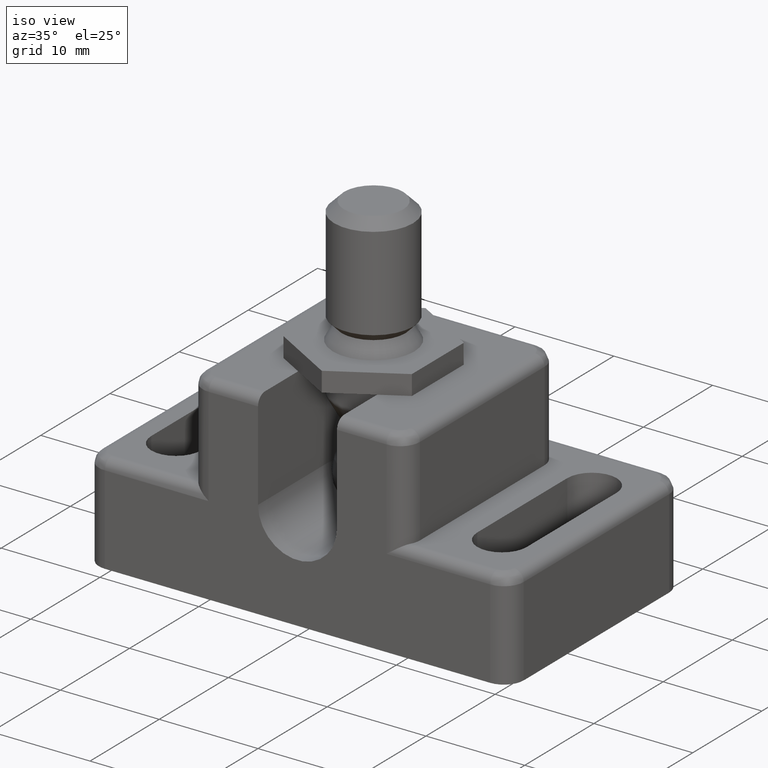
[diagram: clean part render]
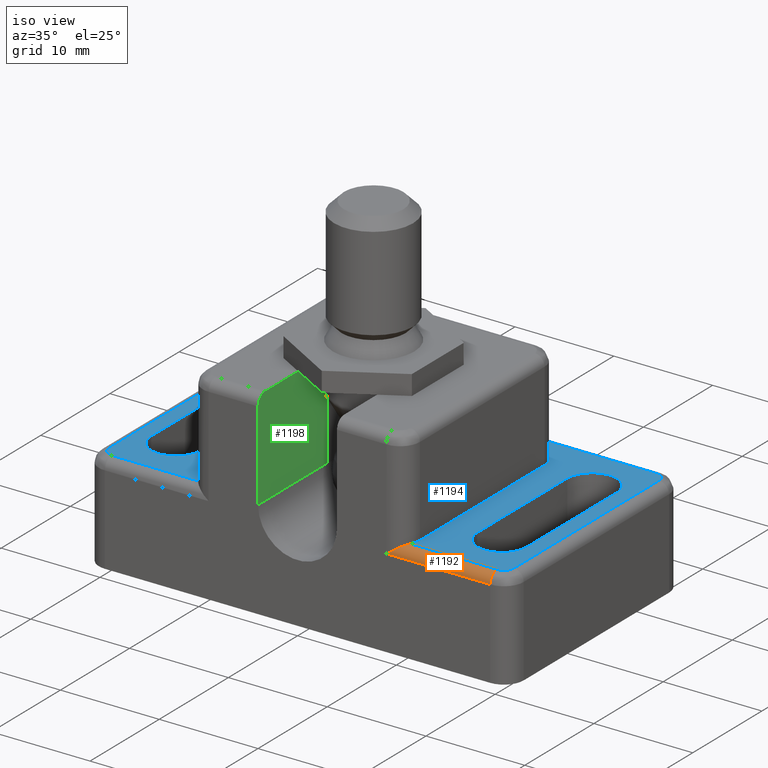
[diagram: same view with three faces highlighted in distinct colors, each labeled with its STEP entity id]
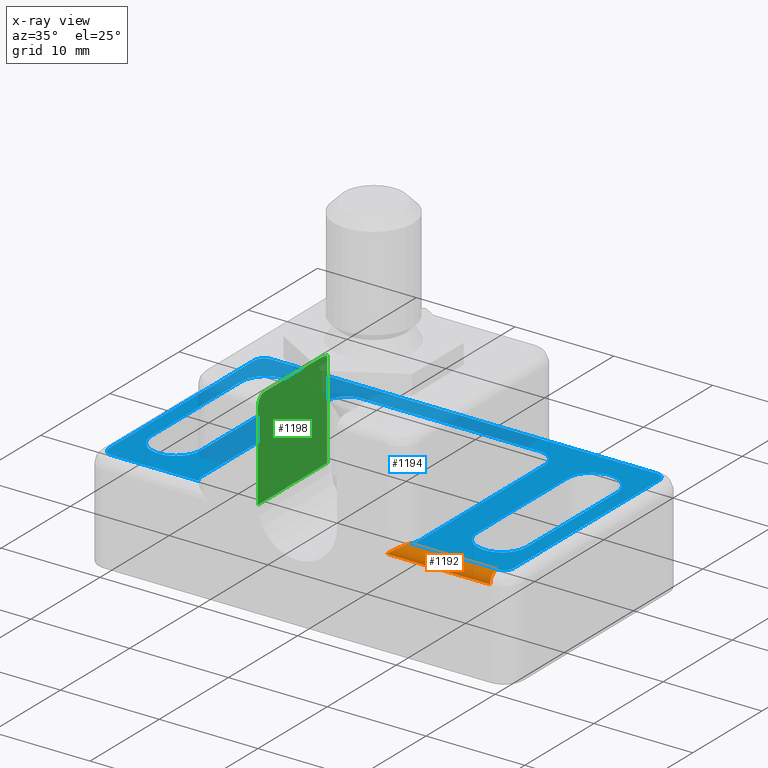
[diagram: x-ray of the same camera — body ghosted, the three highlighted faces saturated]
A machine part, iso view with three faces highlighted in distinct colors.
The next image is the same camera in x-ray (body ghosted, the three faces saturated) — at least one of them is partly hidden behind the body in this view.
Their STEP definitions:

[orange] entity #1192 — the highlighted cylindrical surface (edge-blend (fillet) strip) has radius 1 mm, axis along (-1, 0, 0).
#61=B_SPLINE_CURVE_WITH_KNOTS('',3,(#1919,#1920,#1921,#1922,#1923,#1924,
#1925,#1926,#1927,#1928),.UNSPECIFIED.,.F.,.F.,(4,2,2,2,4),(-0.223738975897401,
-0.178398302759079,-0.133057629620758,-0.066528814810379,-2.77555756156289E-17),
 .UNSPECIFIED.);
#67=CYLINDRICAL_SURFACE('',#1303,1.);
#103=LINE('',#1930,#200);
#104=LINE('',#1933,#201);
#200=VECTOR('',#1480,1.);
#201=VECTOR('',#1483,1.);
#302=FACE_OUTER_BOUND('',#371,.T.);
#371=EDGE_LOOP('',(#852,#853,#854,#855));
#453=CIRCLE('',#1304,1.);
#531=VERTEX_POINT('',#1917);
#532=VERTEX_POINT('',#1918);
#533=VERTEX_POINT('',#1929);
#534=VERTEX_POINT('',#1931);
#654=EDGE_CURVE('',#531,#532,#61,.T.);
#655=EDGE_CURVE('',#533,#532,#103,.T.);
#656=EDGE_CURVE('',#533,#534,#453,.T.);
#657=EDGE_CURVE('',#531,#534,#104,.T.);
#852=ORIENTED_EDGE('',*,*,#654,.T.);
#853=ORIENTED_EDGE('',*,*,#655,.F.);
#854=ORIENTED_EDGE('',*,*,#656,.T.);
#855=ORIENTED_EDGE('',*,*,#657,.F.);
#1192=ADVANCED_FACE('',(#302),#67,.T.);
#1303=AXIS2_PLACEMENT_3D('',#1916,#1478,#1479);
#1304=AXIS2_PLACEMENT_3D('',#1932,#1481,#1482);
#1478=DIRECTION('center_axis',(-1.,0.,0.));
#1479=DIRECTION('ref_axis',(0.,0.,-1.));
#1480=DIRECTION('',(-1.,0.,0.));
#1481=DIRECTION('center_axis',(-1.,0.,0.));
#1482=DIRECTION('ref_axis',(0.,-1.,-2.22044604925031E-16));
#1483=DIRECTION('',(1.,0.,0.));
#1916=CARTESIAN_POINT('Origin',(14.25,1.,9.));
#1917=CARTESIAN_POINT('',(10.7320508075689,1.,10.));
#1918=CARTESIAN_POINT('',(9.,0.,9.));
#1919=CARTESIAN_POINT('Ctrl Pts',(10.7320508075689,1.,10.));
#1920=CARTESIAN_POINT('Ctrl Pts',(10.656483019005,0.869112750791757,10.));
#1921=CARTESIAN_POINT('Ctrl Pts',(10.5605868461299,0.739509957866153,9.973161805844));
#1922=CARTESIAN_POINT('Ctrl Pts',(10.3465953263567,0.513074562819387,9.88193121103716));
#1923=CARTESIAN_POINT('Ctrl Pts',(10.2285643162278,0.41600135599803,9.81798580248774));
#1924=CARTESIAN_POINT('Ctrl Pts',(9.95065744914946,0.229149100170515,9.65395182806102));
#1925=CARTESIAN_POINT('Ctrl Pts',(9.76292260808266,0.140367202043088,9.53066959930044));
#1926=CARTESIAN_POINT('Ctrl Pts',(9.37818186113829,0.0258512978808936,9.26760692545824));
#1927=CARTESIAN_POINT('Ctrl Pts',(9.18106849941949,0.,9.1280347637988));
#1928=CARTESIAN_POINT('Ctrl Pts',(9.,0.,9.));
#1929=CARTESIAN_POINT('',(19.5,0.,9.));
#1930=CARTESIAN_POINT('',(7.125,0.,9.));
#1931=CARTESIAN_POINT('',(19.5,1.,10.));
#1932=CARTESIAN_POINT('Origin',(19.5,1.,9.));
#1933=CARTESIAN_POINT('',(1.625,1.,10.));

[blue] entity #1194 — the highlighted planar face has unit normal (0, 0, 1).
#22=FACE_BOUND('',#374,.T.);
#23=FACE_BOUND('',#375,.T.);
#28=PLANE('',#1307);
#104=LINE('',#1933,#201);
#105=LINE('',#1948,#202);
#107=LINE('',#1956,#204);
#108=LINE('',#1960,#205);
#109=LINE('',#1964,#206);
#110=LINE('',#1969,#207);
#111=LINE('',#1973,#208);
#112=LINE('',#1977,#209);
#113=LINE('',#1983,#210);
#114=LINE('',#1986,#211);
#115=LINE('',#1991,#212);
#116=LINE('',#1994,#213);
#201=VECTOR('',#1483,1.);
#202=VECTOR('',#1486,1.);
#204=VECTOR('',#1494,1.);
#205=VECTOR('',#1497,1.);
#206=VECTOR('',#1500,1.);
#207=VECTOR('',#1505,1.);
#208=VECTOR('',#1508,1.);
#209=VECTOR('',#1511,1.);
#210=VECTOR('',#1516,1.);
#211=VECTOR('',#1519,1.);
#212=VECTOR('',#1522,1.);
#213=VECTOR('',#1525,1.);
#304=FACE_OUTER_BOUND('',#373,.T.);
#373=EDGE_LOOP('',(#860,#861,#862,#863,#864,#865,#866,#867,#868,#869,#870,
#871,#872,#873,#874,#875));
#374=EDGE_LOOP('',(#876,#877,#878,#879));
#375=EDGE_LOOP('',(#880,#881,#882,#883));
#455=CIRCLE('',#1308,1.);
#456=CIRCLE('',#1309,1.);
#457=CIRCLE('',#1310,1.);
#458=CIRCLE('',#1311,1.);
#459=CIRCLE('',#1312,2.);
#460=CIRCLE('',#1313,2.);
#461=CIRCLE('',#1314,2.);
#462=CIRCLE('',#1315,2.);
#463=CIRCLE('',#1316,2.5);
#464=CIRCLE('',#1317,2.5);
#465=CIRCLE('',#1318,2.5);
#466=CIRCLE('',#1319,2.5);
#531=VERTEX_POINT('',#1917);
#534=VERTEX_POINT('',#1931);
#536=VERTEX_POINT('',#1936);
#537=VERTEX_POINT('',#1947);
#539=VERTEX_POINT('',#1953);
#540=VERTEX_POINT('',#1955);
#541=VERTEX_POINT('',#1957);
#542=VERTEX_POINT('',#1959);
#543=VERTEX_POINT('',#1961);
#544=VERTEX_POINT('',#1963);
#545=VERTEX_POINT('',#1966);
#546=VERTEX_POINT('',#1968);
#547=VERTEX_POINT('',#1970);
#548=VERTEX_POINT('',#1972);
#549=VERTEX_POINT('',#1974);
#550=VERTEX_POINT('',#1976);
#551=VERTEX_POINT('',#1979);
#552=VERTEX_POINT('',#1980);
#553=VERTEX_POINT('',#1982);
#554=VERTEX_POINT('',#1984);
#555=VERTEX_POINT('',#1987);
#556=VERTEX_POINT('',#1988);
#557=VERTEX_POINT('',#1990);
#558=VERTEX_POINT('',#1992);
#657=EDGE_CURVE('',#531,#534,#104,.T.);
#659=EDGE_CURVE('',#537,#536,#105,.T.);
#662=EDGE_CURVE('',#534,#539,#455,.T.);
#663=EDGE_CURVE('',#539,#540,#107,.T.);
#664=EDGE_CURVE('',#540,#541,#456,.T.);
#665=EDGE_CURVE('',#541,#542,#108,.T.);
#666=EDGE_CURVE('',#542,#543,#457,.T.);
#667=EDGE_CURVE('',#544,#543,#109,.T.);
#668=EDGE_CURVE('',#544,#537,#458,.T.);
#669=EDGE_CURVE('',#545,#536,#459,.T.);
#670=EDGE_CURVE('',#545,#546,#110,.T.);
#671=EDGE_CURVE('',#547,#546,#460,.T.);
#672=EDGE_CURVE('',#548,#547,#111,.T.);
#673=EDGE_CURVE('',#549,#548,#461,.T.);
#674=EDGE_CURVE('',#550,#549,#112,.T.);
#675=EDGE_CURVE('',#531,#550,#462,.T.);
#676=EDGE_CURVE('',#551,#552,#463,.T.);
#677=EDGE_CURVE('',#552,#553,#113,.T.);
#678=EDGE_CURVE('',#553,#554,#464,.T.);
#679=EDGE_CURVE('',#554,#551,#114,.T.);
#680=EDGE_CURVE('',#555,#556,#465,.T.);
#681=EDGE_CURVE('',#556,#557,#115,.T.);
#682=EDGE_CURVE('',#557,#558,#466,.T.);
#683=EDGE_CURVE('',#558,#555,#116,.T.);
#860=ORIENTED_EDGE('',*,*,#657,.T.);
#861=ORIENTED_EDGE('',*,*,#662,.T.);
#862=ORIENTED_EDGE('',*,*,#663,.T.);
#863=ORIENTED_EDGE('',*,*,#664,.T.);
#864=ORIENTED_EDGE('',*,*,#665,.T.);
#865=ORIENTED_EDGE('',*,*,#666,.T.);
#866=ORIENTED_EDGE('',*,*,#667,.F.);
#867=ORIENTED_EDGE('',*,*,#668,.T.);
#868=ORIENTED_EDGE('',*,*,#659,.T.);
#869=ORIENTED_EDGE('',*,*,#669,.F.);
#870=ORIENTED_EDGE('',*,*,#670,.T.);
#871=ORIENTED_EDGE('',*,*,#671,.F.);
#872=ORIENTED_EDGE('',*,*,#672,.F.);
#873=ORIENTED_EDGE('',*,*,#673,.F.);
#874=ORIENTED_EDGE('',*,*,#674,.F.);
#875=ORIENTED_EDGE('',*,*,#675,.F.);
#876=ORIENTED_EDGE('',*,*,#676,.T.);
#877=ORIENTED_EDGE('',*,*,#677,.T.);
#878=ORIENTED_EDGE('',*,*,#678,.T.);
#879=ORIENTED_EDGE('',*,*,#679,.T.);
#880=ORIENTED_EDGE('',*,*,#680,.T.);
#881=ORIENTED_EDGE('',*,*,#681,.T.);
#882=ORIENTED_EDGE('',*,*,#682,.T.);
#883=ORIENTED_EDGE('',*,*,#683,.T.);
#1194=ADVANCED_FACE('',(#304,#22,#23),#28,.T.);
#1307=AXIS2_PLACEMENT_3D('',#1952,#1490,#1491);
#1308=AXIS2_PLACEMENT_3D('',#1954,#1492,#1493);
#1309=AXIS2_PLACEMENT_3D('',#1958,#1495,#1496);
#1310=AXIS2_PLACEMENT_3D('',#1962,#1498,#1499);
#1311=AXIS2_PLACEMENT_3D('',#1965,#1501,#1502);
#1312=AXIS2_PLACEMENT_3D('',#1967,#1503,#1504);
#1313=AXIS2_PLACEMENT_3D('',#1971,#1506,#1507);
#1314=AXIS2_PLACEMENT_3D('',#1975,#1509,#1510);
#1315=AXIS2_PLACEMENT_3D('',#1978,#1512,#1513);
#1316=AXIS2_PLACEMENT_3D('',#1981,#1514,#1515);
#1317=AXIS2_PLACEMENT_3D('',#1985,#1517,#1518);
#1318=AXIS2_PLACEMENT_3D('',#1989,#1520,#1521);
#1319=AXIS2_PLACEMENT_3D('',#1993,#1523,#1524);
#1483=DIRECTION('',(1.,0.,0.));
#1486=DIRECTION('',(1.,0.,0.));
#1490=DIRECTION('center_axis',(0.,0.,1.));
#1491=DIRECTION('ref_axis',(1.,0.,0.));
#1492=DIRECTION('center_axis',(0.,0.,1.));
#1493=DIRECTION('ref_axis',(1.,0.,0.));
#1494=DIRECTION('',(0.,1.,0.));
#1495=DIRECTION('center_axis',(0.,0.,1.));
#1496=DIRECTION('ref_axis',(-1.,0.,0.));
#1497=DIRECTION('',(-1.,0.,0.));
#1498=DIRECTION('center_axis',(0.,0.,1.));
#1499=DIRECTION('ref_axis',(1.,0.,0.));
#1500=DIRECTION('',(0.,1.,0.));
#1501=DIRECTION('center_axis',(0.,0.,1.));
#1502=DIRECTION('ref_axis',(-1.,0.,0.));
#1503=DIRECTION('center_axis',(0.,0.,1.));
#1504=DIRECTION('ref_axis',(-1.,-2.22044604925031E-16,0.));
#1505=DIRECTION('',(0.,1.,0.));
#1506=DIRECTION('center_axis',(0.,0.,1.));
#1507=DIRECTION('ref_axis',(-2.22044604925031E-16,1.,0.));
#1508=DIRECTION('',(-1.,0.,0.));
#1509=DIRECTION('center_axis',(0.,0.,1.));
#1510=DIRECTION('ref_axis',(1.,2.22044604925031E-16,0.));
#1511=DIRECTION('',(0.,1.,0.));
#1512=DIRECTION('center_axis',(0.,0.,1.));
#1513=DIRECTION('ref_axis',(2.22044604925031E-16,-1.,0.));
#1514=DIRECTION('center_axis',(0.,0.,-1.));
#1515=DIRECTION('ref_axis',(-1.,0.,0.));
#1516=DIRECTION('',(0.,1.,0.));
#1517=DIRECTION('center_axis',(0.,0.,-1.));
#1518=DIRECTION('ref_axis',(1.,-3.5527136788005E-16,0.));
#1519=DIRECTION('',(0.,-1.,0.));
#1520=DIRECTION('center_axis',(0.,0.,-1.));
#1521=DIRECTION('ref_axis',(-1.,0.,0.));
#1522=DIRECTION('',(0.,1.,0.));
#1523=DIRECTION('center_axis',(0.,0.,-1.));
#1524=DIRECTION('ref_axis',(1.,-3.5527136788005E-16,0.));
#1525=DIRECTION('',(0.,-1.,0.));
#1917=CARTESIAN_POINT('',(10.7320508075689,1.,10.));
#1931=CARTESIAN_POINT('',(19.5,1.,10.));
#1933=CARTESIAN_POINT('',(1.625,1.,10.));
#1936=CARTESIAN_POINT('',(-10.7320508075689,1.,10.));
#1947=CARTESIAN_POINT('',(-19.5,1.,10.));
#1948=CARTESIAN_POINT('',(-12.625,1.,10.));
#1952=CARTESIAN_POINT('Origin',(-11.,0.,10.));
#1953=CARTESIAN_POINT('',(20.5,2.,10.));
#1954=CARTESIAN_POINT('Origin',(19.5,2.,10.));
#1955=CARTESIAN_POINT('',(20.5,23.,10.));
#1956=CARTESIAN_POINT('',(20.5,0.,10.));
#1957=CARTESIAN_POINT('',(19.5,24.,10.));
#1958=CARTESIAN_POINT('Origin',(19.5,23.,10.));
#1959=CARTESIAN_POINT('',(-19.5,24.,10.));
#1960=CARTESIAN_POINT('',(0.,24.,10.));
#1961=CARTESIAN_POINT('',(-20.5,23.,10.));
#1962=CARTESIAN_POINT('Origin',(-19.5,23.,10.));
#1963=CARTESIAN_POINT('',(-20.5,2.,10.));
#1964=CARTESIAN_POINT('',(-20.5,0.,10.));
#1965=CARTESIAN_POINT('Origin',(-19.5,2.,10.));
#1966=CARTESIAN_POINT('',(-11.,2.,10.));
#1967=CARTESIAN_POINT('Origin',(-9.,2.,10.));
#1968=CARTESIAN_POINT('',(-11.,20.,10.));
#1969=CARTESIAN_POINT('',(-11.,0.,10.));
#1970=CARTESIAN_POINT('',(-9.,22.,10.));
#1971=CARTESIAN_POINT('Origin',(-9.,20.,10.));
#1972=CARTESIAN_POINT('',(9.,22.,10.));
#1973=CARTESIAN_POINT('',(0.,22.,10.));
#1974=CARTESIAN_POINT('',(11.,20.,10.));
#1975=CARTESIAN_POINT('Origin',(9.,20.,10.));
#1976=CARTESIAN_POINT('',(11.,2.,10.));
#1977=CARTESIAN_POINT('',(11.,0.,10.));
#1978=CARTESIAN_POINT('Origin',(9.,2.,10.));
#1979=CARTESIAN_POINT('',(-14.,6.,10.));
#1980=CARTESIAN_POINT('',(-19.,6.,10.));
#1981=CARTESIAN_POINT('Origin',(-16.5,6.,10.));
#1982=CARTESIAN_POINT('',(-19.,19.,10.));
#1983=CARTESIAN_POINT('',(-19.,3.,10.));
#1984=CARTESIAN_POINT('',(-14.,19.,10.));
#1985=CARTESIAN_POINT('Origin',(-16.5,19.,10.));
#1986=CARTESIAN_POINT('',(-14.,6.25,10.));
#1987=CARTESIAN_POINT('',(19.,6.,10.));
#1988=CARTESIAN_POINT('',(14.,6.,10.));
#1989=CARTESIAN_POINT('Origin',(16.5,6.,10.));
#1990=CARTESIAN_POINT('',(14.,19.,10.));
#1991=CARTESIAN_POINT('',(14.,3.,10.));
#1992=CARTESIAN_POINT('',(19.,19.,10.));
#1993=CARTESIAN_POINT('Origin',(16.5,19.,10.));
#1994=CARTESIAN_POINT('',(19.,6.25,10.));

[green] entity #1198 — the highlighted planar face has unit normal (-1, 0, 0).
#30=PLANE('',#1327);
#63=B_SPLINE_CURVE_WITH_KNOTS('',3,(#2024,#2025,#2026,#2027),
 .UNSPECIFIED.,.F.,.F.,(4,4),(0.421019309046612,0.523324135938118),
 .UNSPECIFIED.);
#119=LINE('',#2002,#216);
#127=LINE('',#2029,#224);
#128=LINE('',#2030,#225);
#129=LINE('',#2031,#226);
#130=LINE('',#2032,#227);
#216=VECTOR('',#1532,1.);
#224=VECTOR('',#1552,1.);
#225=VECTOR('',#1553,1.);
#226=VECTOR('',#1554,1.);
#227=VECTOR('',#1555,1.);
#308=FACE_OUTER_BOUND('',#379,.T.);
#379=EDGE_LOOP('',(#904,#905,#906,#907,#908,#909,#910));
#470=CIRCLE('',#1326,1.);
#523=VERTEX_POINT('',#1894);
#560=VERTEX_POINT('',#1999);
#561=VERTEX_POINT('',#2001);
#567=VERTEX_POINT('',#2018);
#568=VERTEX_POINT('',#2022);
#569=VERTEX_POINT('',#2023);
#570=VERTEX_POINT('',#2028);
#687=EDGE_CURVE('',#560,#561,#119,.T.);
#696=EDGE_CURVE('',#567,#561,#470,.T.);
#698=EDGE_CURVE('',#568,#569,#63,.T.);
#699=EDGE_CURVE('',#570,#568,#127,.T.);
#700=EDGE_CURVE('',#567,#570,#128,.T.);
#701=EDGE_CURVE('',#560,#523,#129,.T.);
#702=EDGE_CURVE('',#569,#523,#130,.T.);
#904=ORIENTED_EDGE('',*,*,#698,.F.);
#905=ORIENTED_EDGE('',*,*,#699,.F.);
#906=ORIENTED_EDGE('',*,*,#700,.F.);
#907=ORIENTED_EDGE('',*,*,#696,.T.);
#908=ORIENTED_EDGE('',*,*,#687,.F.);
#909=ORIENTED_EDGE('',*,*,#701,.T.);
#910=ORIENTED_EDGE('',*,*,#702,.F.);
#1198=ADVANCED_FACE('',(#308),#30,.F.);
#1326=AXIS2_PLACEMENT_3D('',#2019,#1547,#1548);
#1327=AXIS2_PLACEMENT_3D('',#2021,#1550,#1551);
#1532=DIRECTION('',(0.,0.,1.));
#1547=DIRECTION('center_axis',(1.,0.,0.));
#1548=DIRECTION('ref_axis',(0.,-1.,2.22044604925031E-16));
#1550=DIRECTION('center_axis',(-1.,0.,0.));
#1551=DIRECTION('ref_axis',(0.,0.,1.));
#1552=DIRECTION('',(0.,1.,0.));
#1553=DIRECTION('',(0.,1.,0.));
#1554=DIRECTION('',(0.,1.,0.));
#1555=DIRECTION('',(0.,0.,-1.));
#1894=CARTESIAN_POINT('',(-4.,10.,10.));
#1999=CARTESIAN_POINT('',(-4.,0.,10.));
#2001=CARTESIAN_POINT('',(-4.,0.,19.));
#2002=CARTESIAN_POINT('',(-4.,0.,15.2191735005649));
#2018=CARTESIAN_POINT('',(-4.,1.,20.));
#2019=CARTESIAN_POINT('Origin',(-4.,1.,19.));
#2021=CARTESIAN_POINT('Origin',(-4.,0.,22.20007185));
#2022=CARTESIAN_POINT('',(-4.,8.93844718719117,20.));
#2023=CARTESIAN_POINT('',(-4.,10.,19.828558411438));
#2024=CARTESIAN_POINT('Ctrl Pts',(-4.,8.93844718276974,20.));
#2025=CARTESIAN_POINT('Ctrl Pts',(-4.,9.2794632738819,19.9999999993671));
#2026=CARTESIAN_POINT('Ctrl Pts',(-4.,9.64233321343061,19.9280671490798));
#2027=CARTESIAN_POINT('Ctrl Pts',(-4.,9.99999999999998,19.8285584114379));
#2028=CARTESIAN_POINT('',(-4.,5.80384757729337,20.));
#2029=CARTESIAN_POINT('',(-4.,5.5,20.));
#2030=CARTESIAN_POINT('',(-4.,0.,20.));
#2031=CARTESIAN_POINT('',(-4.,0.,10.));
#2032=CARTESIAN_POINT('',(-4.,10.,22.20007185));